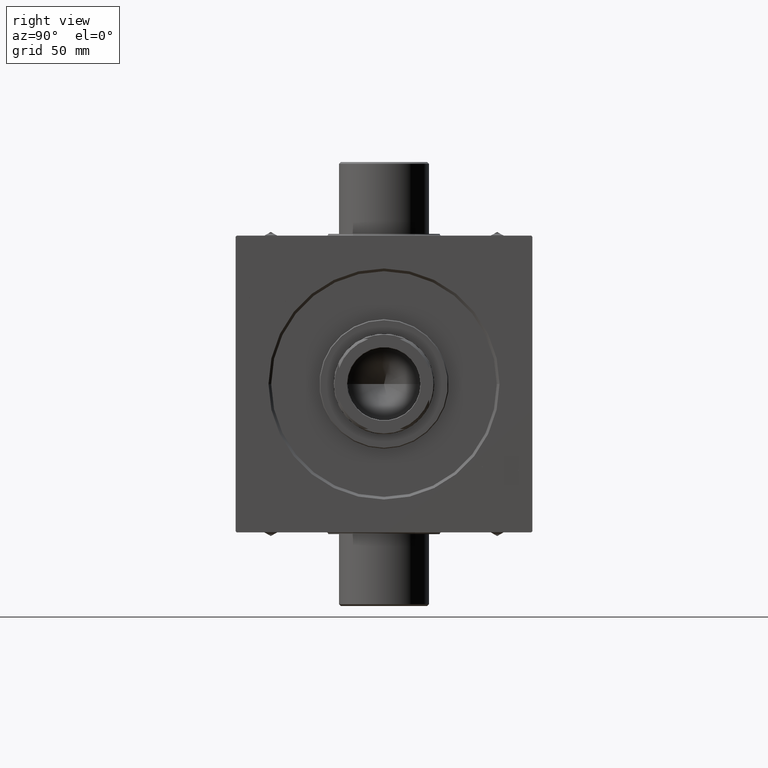
[diagram: clean part render]
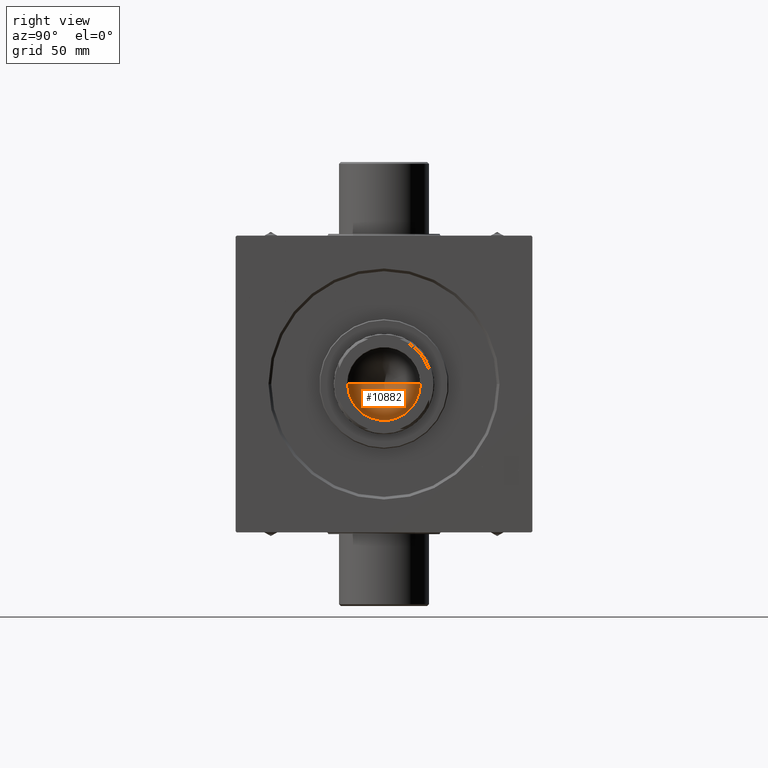
[diagram: same view with one face highlighted and labeled with its STEP entity id]
A machine part, right view. The second image highlights one B-rep face of the part: STEP entity #10882.
In plain terms, the highlighted conical surface has half-angle 59 deg.
Its self-contained STEP definition (entity closure, byte-faithful):
#2191 = AXIS2_PLACEMENT_3D ( 'NONE', #14230, #14005, #13300 ) ;
#3663 = ORIENTED_EDGE ( 'NONE', *, *, #39133, .F. ) ;
#4371 = ORIENTED_EDGE ( 'NONE', *, *, #18603, .T. ) ;
#4490 = VECTOR ( 'NONE', #16209, 1000.000000000000000 ) ;
#8699 = LINE ( 'NONE', #23154, #26484 ) ;
#9719 = VERTEX_POINT ( 'NONE', #33075 ) ;
#10882 = ADVANCED_FACE ( 'NONE', ( #13644 ), #42166, .F. ) ;
#13300 = DIRECTION ( 'NONE',  ( 1.000000000000000000, 0.000000000000000000, 0.000000000000000000 ) ) ;
#13644 = FACE_OUTER_BOUND ( 'NONE', #15029, .T. ) ;
#14005 = DIRECTION ( 'NONE',  ( -0.000000000000000000, -0.000000000000000000, 1.000000000000000000 ) ) ;
#14230 = CARTESIAN_POINT ( 'NONE',  ( 0.000000000000000000, 0.000000000000000000, 136.0000000000000000 ) ) ;
#15029 = EDGE_LOOP ( 'NONE', ( #3663, #26867, #4371 ) ) ;
#16209 = DIRECTION ( 'NONE',  ( -0.8571673007021115565, 1.049727191138617710E-16, 0.5150380749100554878 ) ) ;
#18603 = EDGE_CURVE ( 'NONE', #28104, #20408, #43060, .T. ) ;
#20408 = VERTEX_POINT ( 'NONE', #46758 ) ;
#23154 = CARTESIAN_POINT ( 'NONE',  ( 20.24999999999998934, 0.000000000000000000, 136.0000000000000000 ) ) ;
#23384 = DIRECTION ( 'NONE',  ( 0.8571673007021115565, 0.000000000000000000, 0.5150380749100554878 ) ) ;
#24782 = DIRECTION ( 'NONE',  ( 1.000000000000000000, 0.000000000000000000, 0.000000000000000000 ) ) ;
#26484 = VECTOR ( 'NONE', #23384, 1000.000000000000000 ) ;
#26867 = ORIENTED_EDGE ( 'NONE', *, *, #39778, .T. ) ;
#28104 = VERTEX_POINT ( 'NONE', #31947 ) ;
#31947 = CARTESIAN_POINT ( 'NONE',  ( 20.24999999999998934, 0.000000000000000000, 136.0000000000000000 ) ) ;
#32375 = DIRECTION ( 'NONE',  ( -0.000000000000000000, -0.000000000000000000, 1.000000000000000000 ) ) ;
#33075 = CARTESIAN_POINT ( 'NONE',  ( -1.584115414415908206E-14, 0.000000000000000000, 123.8325724646918786 ) ) ;
#33557 = LINE ( 'NONE', #45138, #4490 ) ;
#38377 = AXIS2_PLACEMENT_3D ( 'NONE', #39011, #32375, #24782 ) ;
#39011 = CARTESIAN_POINT ( 'NONE',  ( 0.000000000000000000, 0.000000000000000000, 136.0000000000000000 ) ) ;
#39133 = EDGE_CURVE ( 'NONE', #9719, #20408, #33557, .T. ) ;
#39778 = EDGE_CURVE ( 'NONE', #9719, #28104, #8699, .T. ) ;
#42166 = CONICAL_SURFACE ( 'NONE', #38377, 20.24999999999998934, 1.029744258676652979 ) ;
#43060 = CIRCLE ( 'NONE', #2191, 20.24999999999998934 ) ;
#45138 = CARTESIAN_POINT ( 'NONE',  ( -20.24999999999998934, 2.479909768273389117E-15, 136.0000000000000000 ) ) ;
#46758 = CARTESIAN_POINT ( 'NONE',  ( -20.24999999999998934, 2.479909768273389117E-15, 136.0000000000000000 ) ) ;